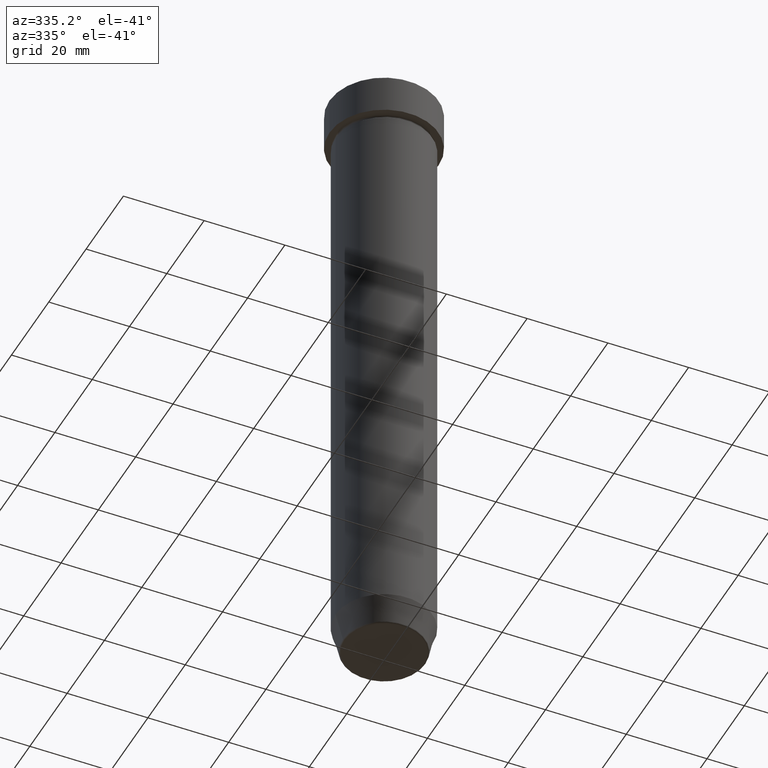
[diagram: clean part render]
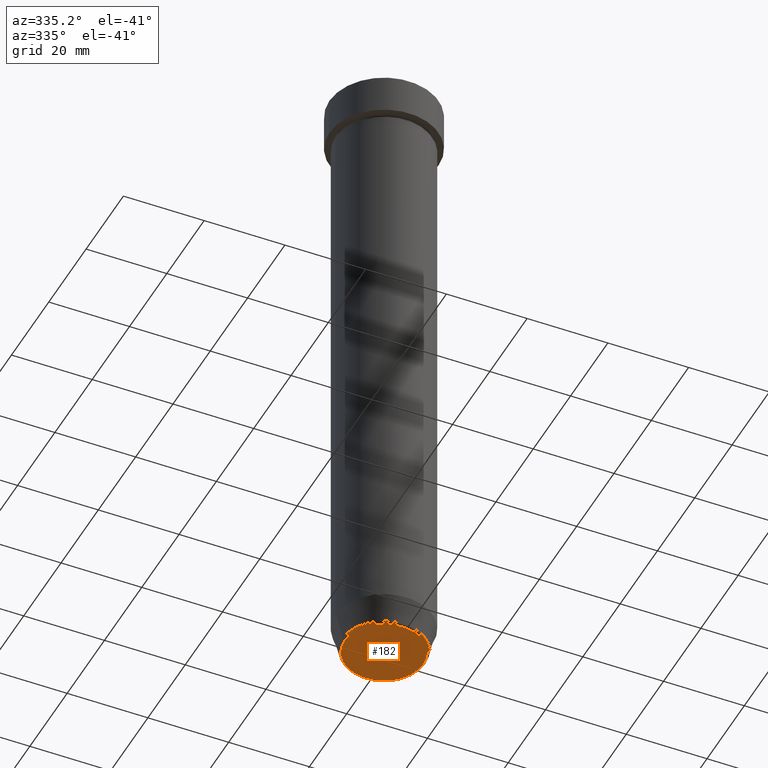
[diagram: same view with one face highlighted and labeled with its STEP entity id]
A machine part, auxiliary view. The second image highlights one B-rep face of the part: STEP entity #182.
In plain terms, the highlighted planar face has unit normal (0, -0, 1).
Its self-contained STEP definition (entity closure, byte-faithful):
#26 = CIRCLE ( 'NONE', #438, 9.740692158992649397 ) ;
#30 = ORIENTED_EDGE ( 'NONE', *, *, #73, .T. ) ;
#36 = PLANE ( 'NONE',  #284 ) ;
#73 = EDGE_CURVE ( 'NONE', #348, #257, #26, .T. ) ;
#92 = DIRECTION ( 'NONE',  ( 1.000000000000000000, 0.000000000000000000, 0.000000000000000000 ) ) ;
#120 = CARTESIAN_POINT ( 'NONE',  ( 9.740692158992649397, 0.000000000000000000, -160.0000000000000000 ) ) ;
#126 = AXIS2_PLACEMENT_3D ( 'NONE', #211, #388, #326 ) ;
#132 = CARTESIAN_POINT ( 'NONE',  ( 0.000000000000000000, 1.347111479062088839E-14, -160.0000000000000000 ) ) ;
#182 = ADVANCED_FACE ( 'NONE', ( #542 ), #36, .F. ) ;
#211 = CARTESIAN_POINT ( 'NONE',  ( 0.000000000000000000, 0.000000000000000000, -160.0000000000000000 ) ) ;
#220 = EDGE_LOOP ( 'NONE', ( #293, #30 ) ) ;
#257 = VERTEX_POINT ( 'NONE', #120 ) ;
#261 = CARTESIAN_POINT ( 'NONE',  ( -9.740692158992649397, 1.222463696683473618E-15, -160.0000000000000000 ) ) ;
#272 = EDGE_CURVE ( 'NONE', #257, #348, #504, .T. ) ;
#284 = AXIS2_PLACEMENT_3D ( 'NONE', #132, #363, #377 ) ;
#293 = ORIENTED_EDGE ( 'NONE', *, *, #272, .T. ) ;
#326 = DIRECTION ( 'NONE',  ( 1.000000000000000000, 0.000000000000000000, 0.000000000000000000 ) ) ;
#348 = VERTEX_POINT ( 'NONE', #261 ) ;
#363 = DIRECTION ( 'NONE',  ( 0.000000000000000000, -0.000000000000000000, 1.000000000000000000 ) ) ;
#377 = DIRECTION ( 'NONE',  ( 1.000000000000000000, 0.000000000000000000, 0.000000000000000000 ) ) ;
#388 = DIRECTION ( 'NONE',  ( 0.000000000000000000, 0.000000000000000000, -1.000000000000000000 ) ) ;
#398 = CARTESIAN_POINT ( 'NONE',  ( 0.000000000000000000, 0.000000000000000000, -160.0000000000000000 ) ) ;
#438 = AXIS2_PLACEMENT_3D ( 'NONE', #398, #591, #92 ) ;
#504 = CIRCLE ( 'NONE', #126, 9.740692158992649397 ) ;
#542 = FACE_OUTER_BOUND ( 'NONE', #220, .T. ) ;
#591 = DIRECTION ( 'NONE',  ( 0.000000000000000000, 0.000000000000000000, -1.000000000000000000 ) ) ;